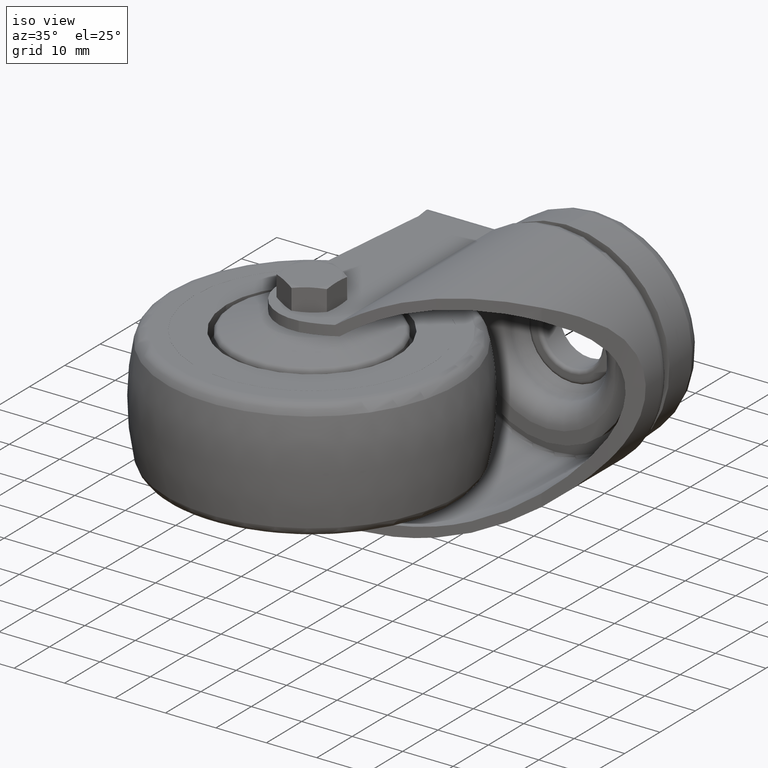
[diagram: clean part render]
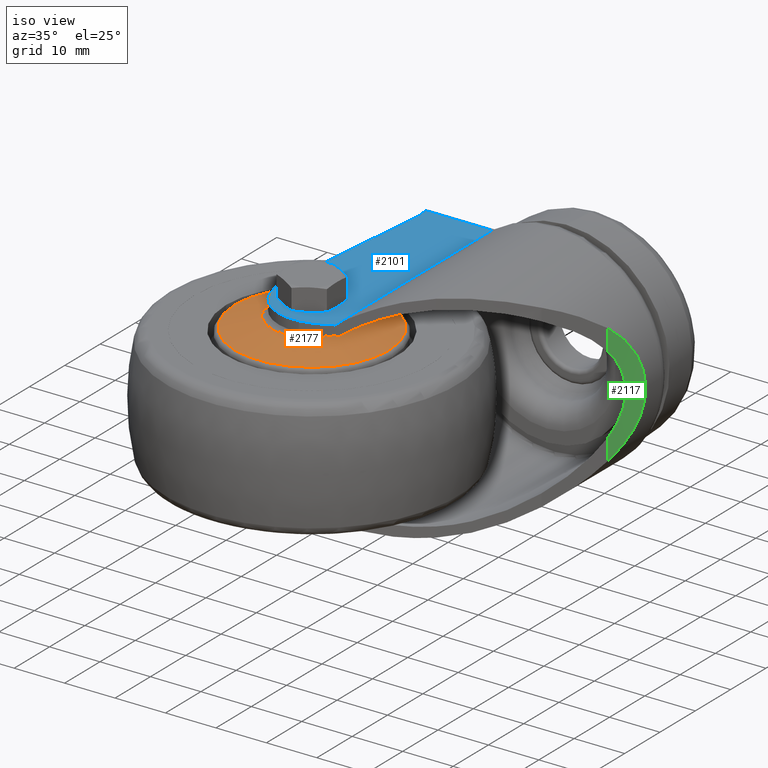
[diagram: same view with three faces highlighted in distinct colors, each labeled with its STEP entity id]
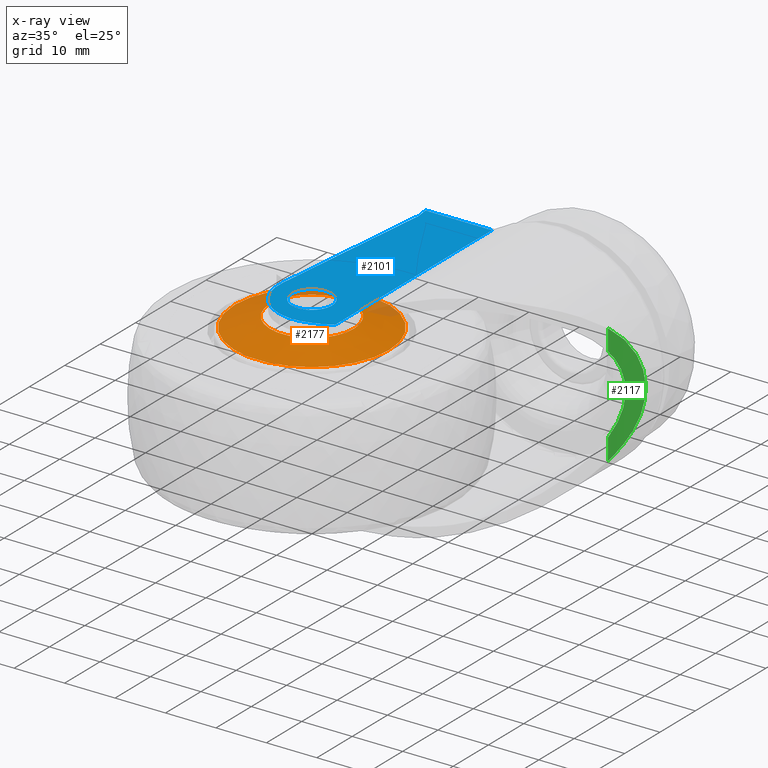
[diagram: x-ray of the same camera — body ghosted, the three highlighted faces saturated]
A machine part, iso view with three faces highlighted in distinct colors.
The next image is the same camera in x-ray (body ghosted, the three faces saturated) — at least one of them is partly hidden behind the body in this view.
Their STEP definitions:

[orange] entity #2177 — the highlighted conical surface has half-angle 74 deg.
#386=FACE_OUTER_BOUND('',#555,.T.);
#555=EDGE_LOOP('',(#1855,#1856,#1857,#1858));
#663=LINE('',#4216,#742);
#742=VECTOR('',#3308,15.275637355817);
#866=CIRCLE('',#2684,8.3175482605573);
#869=CIRCLE('',#2688,15.275637355817);
#1045=VERTEX_POINT('',#4208);
#1047=VERTEX_POINT('',#4214);
#1318=EDGE_CURVE('',#1045,#1045,#866,.T.);
#1321=EDGE_CURVE('',#1047,#1047,#869,.T.);
#1322=EDGE_CURVE('',#1047,#1045,#663,.T.);
#1855=ORIENTED_EDGE('',*,*,#1321,.F.);
#1856=ORIENTED_EDGE('',*,*,#1322,.T.);
#1857=ORIENTED_EDGE('',*,*,#1318,.T.);
#1858=ORIENTED_EDGE('',*,*,#1322,.F.);
#2019=CONICAL_SURFACE('',#2687,15.275637355817,1.2915436464758);
#2177=ADVANCED_FACE('',(#386),#2019,.T.);
#2684=AXIS2_PLACEMENT_3D('',#4209,#3298,#3299);
#2687=AXIS2_PLACEMENT_3D('',#4213,#3304,#3305);
#2688=AXIS2_PLACEMENT_3D('',#4215,#3306,#3307);
#3298=DIRECTION('center_axis',(1.,0.,0.));
#3299=DIRECTION('ref_axis',(0.,0.,-1.));
#3304=DIRECTION('center_axis',(1.,0.,0.));
#3305=DIRECTION('ref_axis',(0.,0.,-1.));
#3306=DIRECTION('center_axis',(1.,0.,0.));
#3307=DIRECTION('ref_axis',(0.,0.,-1.));
#3308=DIRECTION('',(-0.275637355817003,1.17720605907382E-16,-0.961261695938318));
#4208=CARTESIAN_POINT('',(0.0193691520308402,-1.01860588540451E-15,8.3175482605573));
#4209=CARTESIAN_POINT('Origin',(0.0193691520308402,0.,0.));
#4213=CARTESIAN_POINT('Origin',(2.01456909379523,0.,0.));
#4214=CARTESIAN_POINT('',(2.01456909379523,-1.8707260392737E-15,15.275637355817));
#4215=CARTESIAN_POINT('Origin',(2.01456909379523,0.,0.));
#4216=CARTESIAN_POINT('',(2.01456909379523,-1.8707260392737E-15,15.275637355817));

[blue] entity #2101 — the highlighted planar face has unit normal (0, 0, -1).
#87=B_SPLINE_CURVE_WITH_KNOTS('',3,(#3644,#3645,#3646,#3647,#3648,#3649,
#3650),.UNSPECIFIED.,.F.,.F.,(4,3,4),(0.0535543288731596,0.0535839052526173,
0.053613481632075),.UNSPECIFIED.);
#184=FACE_BOUND('',#466,.T.);
#215=PLANE('',#2528);
#310=FACE_OUTER_BOUND('',#465,.T.);
#465=EDGE_LOOP('',(#1503,#1504,#1505,#1506,#1507,#1508,#1509));
#466=EDGE_LOOP('',(#1510));
#613=LINE('',#3642,#692);
#614=LINE('',#3652,#693);
#615=LINE('',#3654,#694);
#616=LINE('',#3655,#695);
#692=VECTOR('',#2942,1000.);
#693=VECTOR('',#2943,1000.);
#694=VECTOR('',#2944,1000.);
#695=VECTOR('',#2945,1000.);
#799=CIRCLE('',#2529,9.41847);
#800=CIRCLE('',#2530,18.0999999999999);
#801=CIRCLE('',#2531,4.);
#941=VERTEX_POINT('',#3636);
#942=VERTEX_POINT('',#3637);
#943=VERTEX_POINT('',#3639);
#944=VERTEX_POINT('',#3641);
#945=VERTEX_POINT('',#3643);
#946=VERTEX_POINT('',#3651);
#947=VERTEX_POINT('',#3653);
#948=VERTEX_POINT('',#3656);
#1148=EDGE_CURVE('',#941,#942,#799,.F.);
#1149=EDGE_CURVE('',#942,#943,#800,.F.);
#1150=EDGE_CURVE('',#943,#944,#613,.F.);
#1151=EDGE_CURVE('',#944,#945,#87,.T.);
#1152=EDGE_CURVE('',#945,#946,#614,.T.);
#1153=EDGE_CURVE('',#947,#946,#615,.T.);
#1154=EDGE_CURVE('',#941,#947,#616,.T.);
#1155=EDGE_CURVE('',#948,#948,#801,.F.);
#1503=ORIENTED_EDGE('',*,*,#1148,.T.);
#1504=ORIENTED_EDGE('',*,*,#1149,.T.);
#1505=ORIENTED_EDGE('',*,*,#1150,.T.);
#1506=ORIENTED_EDGE('',*,*,#1151,.T.);
#1507=ORIENTED_EDGE('',*,*,#1152,.T.);
#1508=ORIENTED_EDGE('',*,*,#1153,.F.);
#1509=ORIENTED_EDGE('',*,*,#1154,.F.);
#1510=ORIENTED_EDGE('',*,*,#1155,.F.);
#2101=ADVANCED_FACE('',(#310,#184),#215,.F.);
#2528=AXIS2_PLACEMENT_3D('',#3635,#2936,#2937);
#2529=AXIS2_PLACEMENT_3D('',#3638,#2938,#2939);
#2530=AXIS2_PLACEMENT_3D('',#3640,#2940,#2941);
#2531=AXIS2_PLACEMENT_3D('',#3657,#2946,#2947);
#2936=DIRECTION('center_axis',(0.,0.,-1.));
#2937=DIRECTION('ref_axis',(-1.,0.,0.));
#2938=DIRECTION('center_axis',(0.,0.,-1.));
#2939=DIRECTION('ref_axis',(-1.,0.,0.));
#2940=DIRECTION('center_axis',(0.,0.,-1.));
#2941=DIRECTION('ref_axis',(-1.,0.,0.));
#2942=DIRECTION('',(0.,-1.,0.));
#2943=DIRECTION('',(-1.,0.,0.));
#2944=DIRECTION('',(-0.12511255418277,0.99214255466937,0.));
#2945=DIRECTION('',(0.0989885931747857,0.995088568129127,0.));
#2946=DIRECTION('center_axis',(0.,0.,-1.));
#2947=DIRECTION('ref_axis',(-1.,0.,0.));
#3635=CARTESIAN_POINT('Origin',(19.,38.6,17.5));
#3636=CARTESIAN_POINT('',(-7.56374458610136,2.52828823765852,17.5));
#3637=CARTESIAN_POINT('',(2.9422278938127,-7.92172421617259,17.5));
#3638=CARTESIAN_POINT('Origin',(1.78999999999996,1.42600000000002,17.5));
#3639=CARTESIAN_POINT('',(8.68293866216459,-5.85453244256218,17.5));
#3640=CARTESIAN_POINT('Origin',(-0.23191176991681,9.89778299909955,17.5));
#3641=CARTESIAN_POINT('',(8.68293866216459,38.5399999999999,17.5));
#3642=CARTESIAN_POINT('',(8.68293866216459,46.47,17.5));
#3643=CARTESIAN_POINT('',(8.68137469190384,38.6,17.5));
#3644=CARTESIAN_POINT('Ctrl Pts',(8.68293866216458,38.5399999999999,17.5));
#3645=CARTESIAN_POINT('Ctrl Pts',(8.68242059847188,38.5499348133541,17.5));
#3646=CARTESIAN_POINT('Ctrl Pts',(8.68202665818576,38.5599828481802,17.5));
#3647=CARTESIAN_POINT('Ctrl Pts',(8.68176554107677,38.5700024919062,17.5));
#3648=CARTESIAN_POINT('Ctrl Pts',(8.68150442396779,38.5800221356321,17.5));
#3649=CARTESIAN_POINT('Ctrl Pts',(8.68137469190379,38.5900212187712,17.5));
#3650=CARTESIAN_POINT('Ctrl Pts',(8.68137469190379,38.6,17.5));
#3651=CARTESIAN_POINT('',(-4.50735182849937,38.6,17.5));
#3652=CARTESIAN_POINT('',(19.,38.6,17.5));
#3653=CARTESIAN_POINT('',(-4.21,36.242,17.5));
#3654=CARTESIAN_POINT('',(-4.13938769568396,35.6820444267738,17.5));
#3655=CARTESIAN_POINT('',(-3.75030250762626,40.863135676219,17.5));
#3656=CARTESIAN_POINT('',(4.,4.89858719658941E-16,17.5));
#3657=CARTESIAN_POINT('Origin',(0.,0.,17.5));

[green] entity #2117 — the highlighted cylindrical surface (partial cylindrical patch) has radius 45.36 mm, axis along (0, 0, 1).
#91=B_SPLINE_CURVE_WITH_KNOTS('',3,(#3712,#3713,#3714,#3715,#3716,#3717,
#3718,#3719,#3720,#3721,#3722,#3723,#3724,#3725),.UNSPECIFIED.,.F.,.F.,
(4,2,2,2,2,2,4),(4.93924355569081,5.15668726348202,5.46542536598725,5.77416346849249,
6.08290157099773,6.39163967350297,6.60908338129418),.UNSPECIFIED.);
#99=B_SPLINE_CURVE_WITH_KNOTS('',3,(#3812,#3813,#3814,#3815,#3816,#3817,
#3818,#3819,#3820,#3821,#3822,#3823,#3824,#3825),.UNSPECIFIED.,.F.,.F.,
(4,2,2,2,2,2,4),(-7.655631086912,-7.2114884404188,-6.74464892293105,-6.27780940544331,
-5.81096988795556,-5.34413037046781,-4.89998772397461),.UNSPECIFIED.);
#156=CYLINDRICAL_SURFACE('',#2569,45.3600000000034);
#326=FACE_OUTER_BOUND('',#483,.T.);
#483=EDGE_LOOP('',(#1600,#1601,#1602,#1603));
#634=LINE('',#3910,#713);
#635=LINE('',#3913,#714);
#713=VECTOR('',#3037,1000.);
#714=VECTOR('',#3042,1000.);
#964=VERTEX_POINT('',#3704);
#965=VERTEX_POINT('',#3711);
#981=VERTEX_POINT('',#3804);
#982=VERTEX_POINT('',#3811);
#1173=EDGE_CURVE('',#964,#965,#91,.T.);
#1198=EDGE_CURVE('',#981,#982,#99,.T.);
#1212=EDGE_CURVE('',#981,#965,#634,.T.);
#1213=EDGE_CURVE('',#964,#982,#635,.T.);
#1600=ORIENTED_EDGE('',*,*,#1212,.T.);
#1601=ORIENTED_EDGE('',*,*,#1173,.F.);
#1602=ORIENTED_EDGE('',*,*,#1213,.T.);
#1603=ORIENTED_EDGE('',*,*,#1198,.F.);
#2117=ADVANCED_FACE('',(#326),#156,.F.);
#2569=AXIS2_PLACEMENT_3D('',#3912,#3040,#3041);
#3037=DIRECTION('',(0.,0.,-1.));
#3040=DIRECTION('center_axis',(0.,0.,1.));
#3041=DIRECTION('ref_axis',(-1.,0.,0.));
#3042=DIRECTION('',(0.,0.,-1.));
#3704=CARTESIAN_POINT('',(38.7884849647765,28.3920001140622,-7.74143414736068));
#3711=CARTESIAN_POINT('',(38.7884849647765,28.3920001140622,7.74143414736068));
#3712=CARTESIAN_POINT('Ctrl Pts',(38.7884849647765,28.3920001140622,-7.74143414736067));
#3713=CARTESIAN_POINT('Ctrl Pts',(39.0326226147524,28.8383838829746,-7.18044779350615));
#3714=CARTESIAN_POINT('Ctrl Pts',(39.262752588099,29.2411650873811,-6.57845059036593));
#3715=CARTESIAN_POINT('Ctrl Pts',(39.756931681606,30.0830168839157,-5.04314036722109));
#3716=CARTESIAN_POINT('Ctrl Pts',(39.9947223450758,30.4672463075892,-4.07350278733728));
#3717=CARTESIAN_POINT('Ctrl Pts',(40.3163808143046,30.9802138062672,-2.06647886665128));
#3718=CARTESIAN_POINT('Ctrl Pts',(40.4,31.1092426230289,-1.02912700835079));
#3719=CARTESIAN_POINT('Ctrl Pts',(40.4,31.1092426230289,1.02912700835079));
#3720=CARTESIAN_POINT('Ctrl Pts',(40.3163808143046,30.9802138062672,2.06647886665128));
#3721=CARTESIAN_POINT('Ctrl Pts',(39.9947223450758,30.4672463075892,4.07350278733728));
#3722=CARTESIAN_POINT('Ctrl Pts',(39.756931681606,30.0830168839157,5.04314036722109));
#3723=CARTESIAN_POINT('Ctrl Pts',(39.262752588099,29.2411650873811,6.57845059036592));
#3724=CARTESIAN_POINT('Ctrl Pts',(39.0326226147524,28.8383838829746,7.18044779350615));
#3725=CARTESIAN_POINT('Ctrl Pts',(38.7884849647765,28.3920001140622,7.74143414736068));
#3804=CARTESIAN_POINT('',(38.7884849647765,28.3920001140622,11.8966298865654));
#3811=CARTESIAN_POINT('',(38.7884849647765,28.3920001140622,-11.8966298865654));
#3812=CARTESIAN_POINT('Ctrl Pts',(38.7884849647765,28.3920001140622,11.8966298865654));
#3813=CARTESIAN_POINT('Ctrl Pts',(39.3577084548446,29.4327741481987,11.0454961124443));
#3814=CARTESIAN_POINT('Ctrl Pts',(39.9230062565524,30.3682057710757,10.0708296597483));
#3815=CARTESIAN_POINT('Ctrl Pts',(40.987286244169,32.0218981173646,7.75704637269081));
#3816=CARTESIAN_POINT('Ctrl Pts',(41.5075031827322,32.7631075922985,6.31907166499945));
#3817=CARTESIAN_POINT('Ctrl Pts',(42.2162065765666,33.7405850293505,3.21885494001732));
#3818=CARTESIAN_POINT('Ctrl Pts',(42.4,33.9787228168666,1.55613172495916));
#3819=CARTESIAN_POINT('Ctrl Pts',(42.4,33.9787228168666,-1.55613172495916));
#3820=CARTESIAN_POINT('Ctrl Pts',(42.2162065765666,33.7405850293505,-3.21885494001732));
#3821=CARTESIAN_POINT('Ctrl Pts',(41.5075031827322,32.7631075922985,-6.31907166499945));
#3822=CARTESIAN_POINT('Ctrl Pts',(40.987286244169,32.0218981173646,-7.75704637269081));
#3823=CARTESIAN_POINT('Ctrl Pts',(39.9230062565524,30.3682057710757,-10.0708296597483));
#3824=CARTESIAN_POINT('Ctrl Pts',(39.3577084548446,29.4327741481987,-11.0454961124443));
#3825=CARTESIAN_POINT('Ctrl Pts',(38.7884849647765,28.3920001140622,-11.8966298865654));
#3910=CARTESIAN_POINT('',(38.7884849647765,28.3920001140622,50.));
#3912=CARTESIAN_POINT('Origin',(78.5852319148664,6.62623497265687,50.));
#3913=CARTESIAN_POINT('',(38.7884849647765,28.3920001140622,50.));